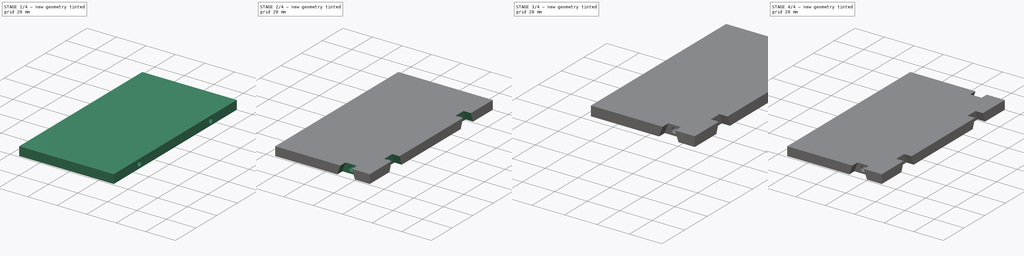
[diagram: build sequence overview — one tinted view per stage of 4, left to right]
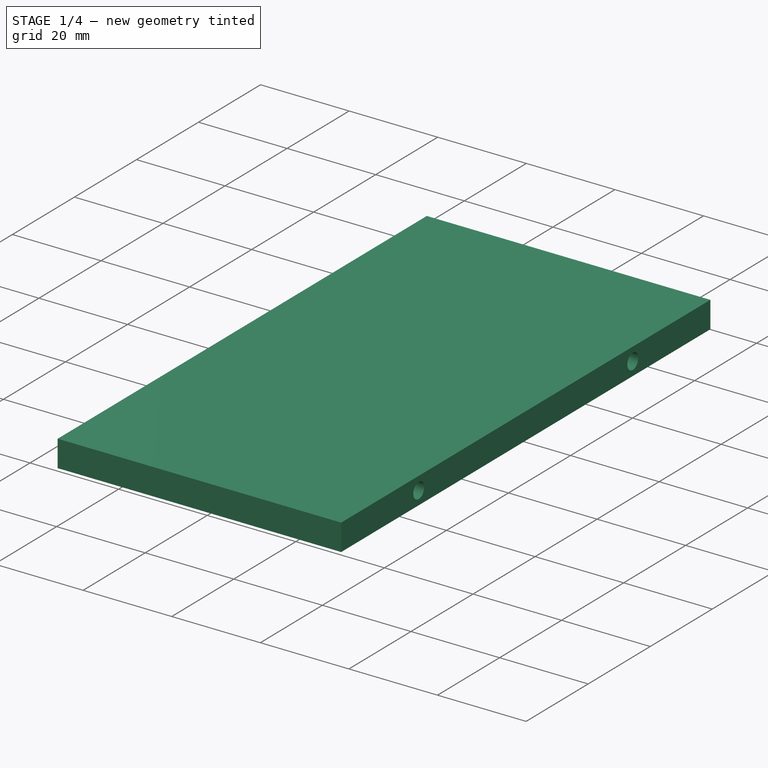
[diagram: stage 1 of 4 — iso view after this stage's code; geometry added in this stage tinted green]
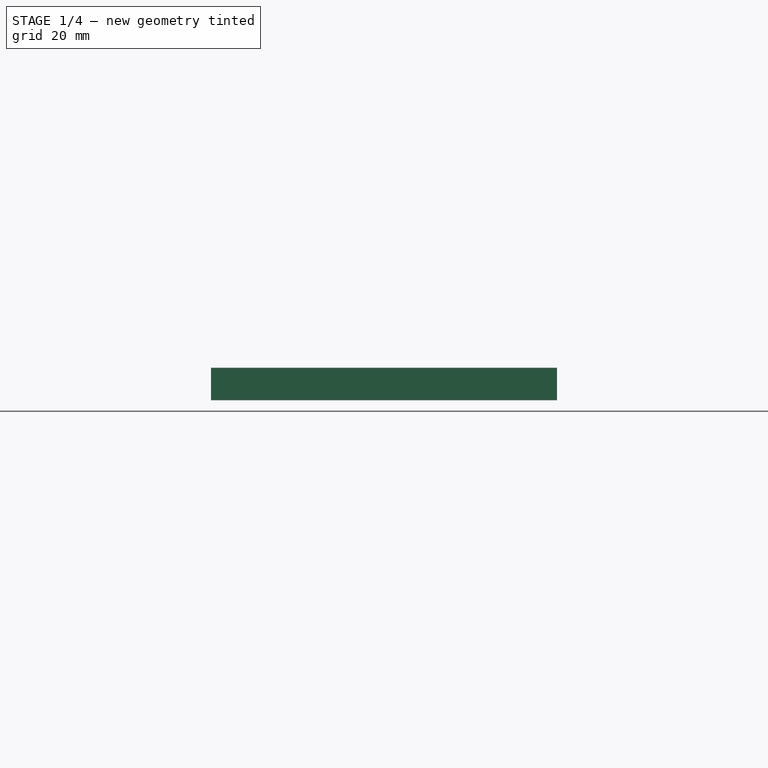
[diagram: stage 1 of 4 — front view after this stage's code; geometry added in this stage tinted green]
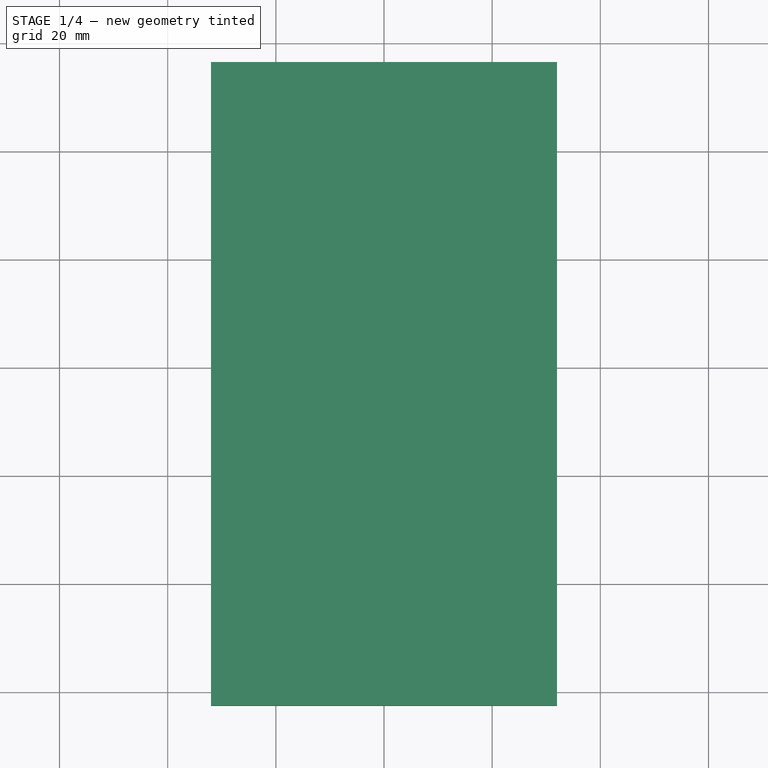
[diagram: stage 1 of 4 — top view after this stage's code; geometry added in this stage tinted green]
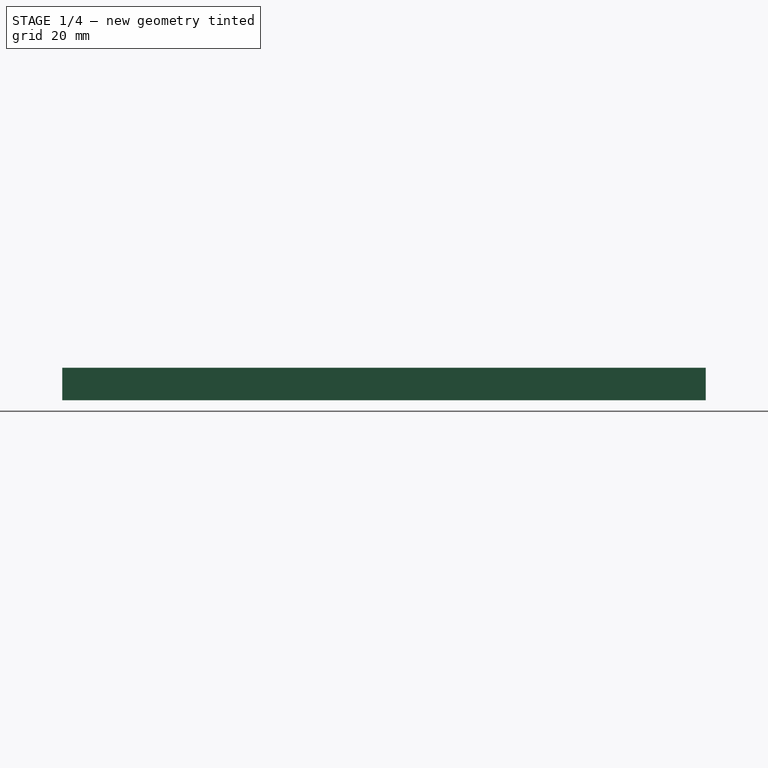
[diagram: stage 1 of 4 — right view after this stage's code; geometry added in this stage tinted green]
FCSTD DOCUMENT  (FreeCAD 0.22R38334 (Git))
Label: CH001
License: All rights reserved
LicenseURL: http://en.wikipedia.org/wiki/All_rights_reserved
objects: Sketcher::SketchObject×9, PartDesign::Pocket×6, PartDesign::Body×4, PartDesign::SubShapeBinder×2, PartDesign::Pad×2, PartDesign::Hole×1, Part::Mirroring×1, PartDesign::FeatureBase×1, App::Part×1
note: 54 computed .brp shape members not serialized (recipe doc carries the construction recipe); baked Part::Feature solids carry a one-line shape summary decoded from their .brp

FEATURE [PartDesign::SubShapeBinder] Binder020
  BindCopyOnChange = 0
  BindMode = 0
  ClaimChildren = false
  Context = -> Part004 [Body017.Binder020.]
  Fuse = false
  MakeFace = true
  OffsetFill = false
  OffsetIntersection = false
  OffsetJoinType = 0
  OffsetOpenResult = false
  PartialLoad = false
  Relative = true
  Support = -> [Body016[Sketch033.]]
  _Version = 2
FEATURE [PartDesign::Pad] Pad012
  Direction = (0,0,1)
  Length = 6
  Length2 = 10
  Profile = -> Binder020
  Suppressed = false
  Type = 0
FEATURE [Sketcher::SketchObject] Sketch
  AttachmentSupport = -> [Pad012]
  ExternalGeometry = -> [Pad012]
  FullyConstrained = true
  MakeInternals = false
  MapMode = 5
  Placement = pos=(32,0,0) rot=(0.57735,0.57735,0.57735;2.0944rad)
  sketch-geometry (4):
    g0: LineSegment StartX=57.5 StartY=3 StartZ=0 EndX=176.5 EndY=3 EndZ=0
    g1: Circle CenterX=82.5 CenterY=3 CenterZ=0 NormalX=0 NormalY=0 NormalZ=1 AngleXU=0 Radius=1.75
    g2: Circle CenterX=151.5 CenterY=3 CenterZ=0 NormalX=0 NormalY=0 NormalZ=1 AngleXU=0 Radius=1.75
    g3: GeomPoint X=117 Y=3 Z=0
  constraints (8):
    c: Symmetric(g-5,g-5,g0)
    c: Symmetric(g-6,g-6,g0)
    c: PointOnObject(g1,g0)
    c: Diameter(g1) = 3.5
    c: Equal(g1,g2)
    c: Symmetric(g0,g0,g3)
    c: Symmetric(g1,g2,g3)
    c: DistanceX(g0,g1) = 25
FEATURE [PartDesign::Pocket] Pocket
  BaseFeature = -> Pad012
  Direction = (-1,0,0)
  Length = 9
  Length2 = 5
  Profile = -> Sketch
  ReferenceAxis = -> Sketch [N_Axis]
  Suppressed = false
  Type = 0
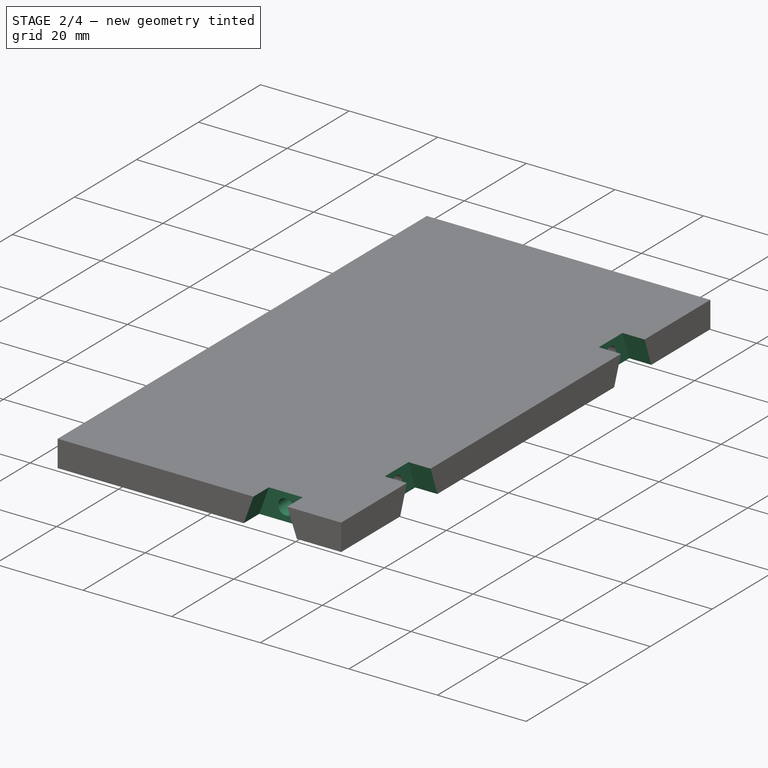
[diagram: stage 2 of 4 — iso view after this stage's code; geometry added in this stage tinted green]
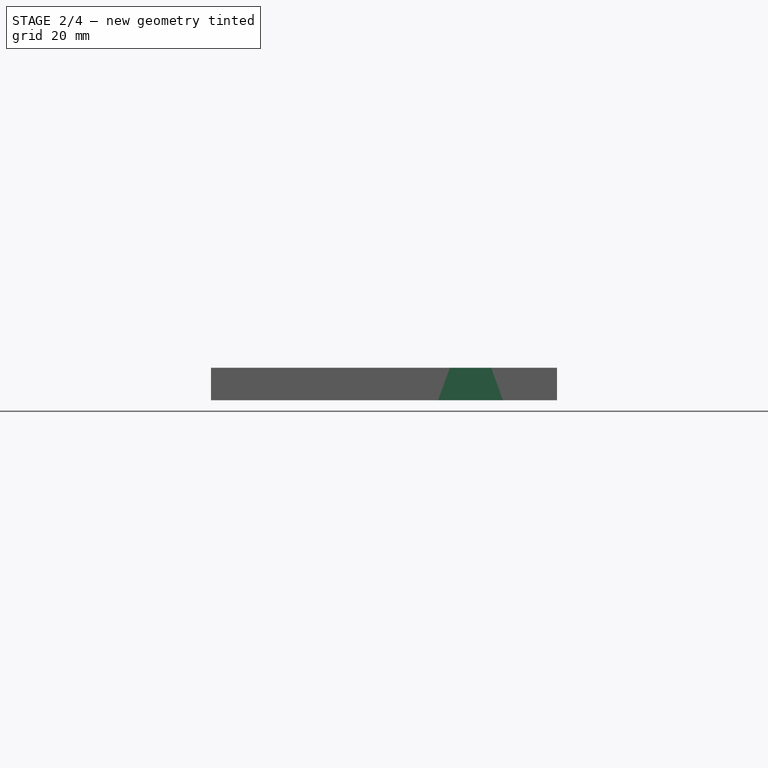
[diagram: stage 2 of 4 — front view after this stage's code; geometry added in this stage tinted green]
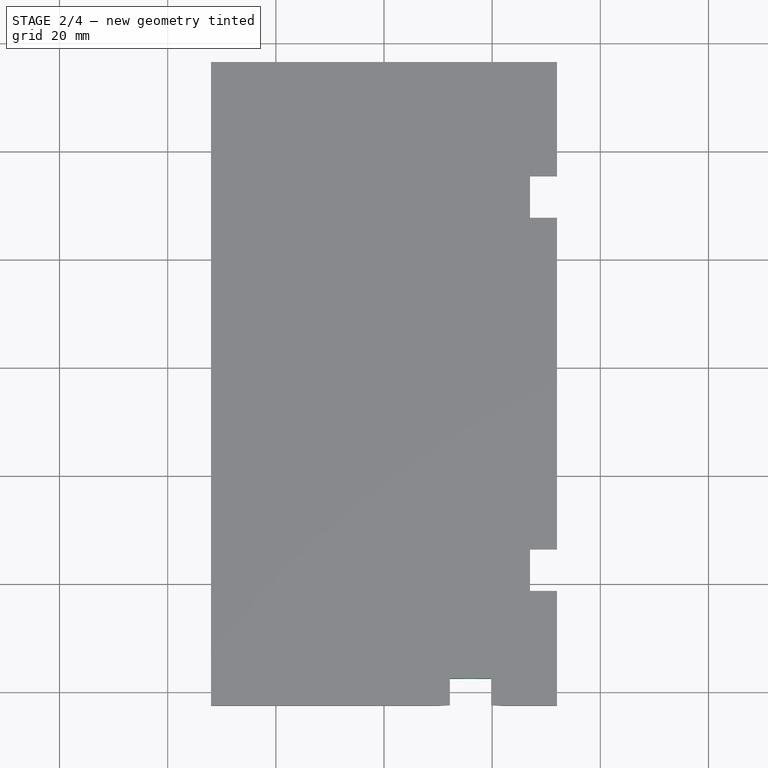
[diagram: stage 2 of 4 — top view after this stage's code; geometry added in this stage tinted green]
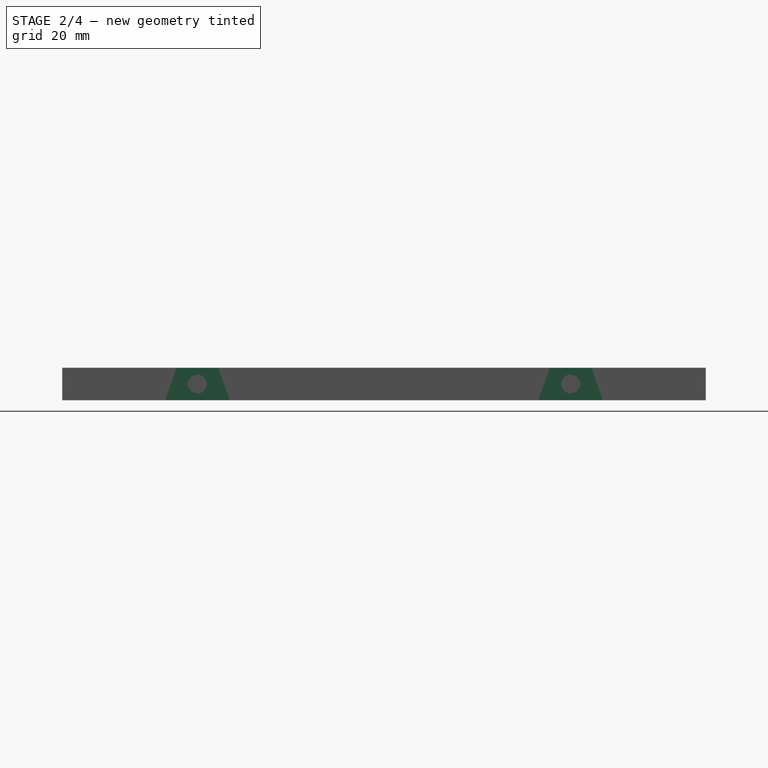
[diagram: stage 2 of 4 — right view after this stage's code; geometry added in this stage tinted green]
FEATURE [Sketcher::SketchObject] Sketch033
  AttachmentSupport = -> [XY_Plane021]
  FullyConstrained = true
  MakeInternals = false
  MapMode = 5
  expr: Constraints[10] = 215 - 48 * 2
  sketch-geometry (5):
    g0: LineSegment StartX=-32 StartY=-59.5 StartZ=0 EndX=32 EndY=-59.5 EndZ=0
    g1: LineSegment StartX=32 StartY=-59.5 StartZ=0 EndX=32 EndY=59.5 EndZ=0
    g2: LineSegment StartX=32 StartY=59.5 StartZ=0 EndX=-32 EndY=59.5 EndZ=0
    g3: LineSegment StartX=-32 StartY=59.5 StartZ=0 EndX=-32 EndY=-59.5 EndZ=0
    g4: GeomPoint X=0 Y=0 Z=0
  constraints (12):
    c: Coincident(g0,g1)
    c: Coincident(g1,g2)
    c: Coincident(g2,g3)
    c: Coincident(g3,g0)
    c: Horizontal(g0)
    c: Horizontal(g2)
    c: Vertical(g1)
    c: Vertical(g3)
    c: Symmetric(g2,g0,g4)
    c: Coincident(g4,g-1)
    c: DistanceY(g1,g1) = 119
    c: DistanceX(g2,g2) = 64
FEATURE [PartDesign::Body] Body016  label="Master004"
  AllowCompound = false
  Group = -> [Sketch033]
  Origin = -> Origin021
FEATURE [Sketcher::SketchObject] Sketch044
  AttachmentSupport = -> [Pocket]
  ExternalGeometry = -> [Pocket]
  FullyConstrained = true
  MakeInternals = false
  MapMode = 5
  Placement = pos=(32,0,0) rot=(0.57735,0.57735,0.57735;2.0944rad)
  sketch-geometry (10):
    g0: LineSegment StartX=76.5 StartY=0 StartZ=0 EndX=78.6838 EndY=6 EndZ=0
    g1: LineSegment StartX=78.6838 StartY=6 StartZ=0 EndX=86.3162 EndY=6 EndZ=0
    g2: LineSegment StartX=86.3162 StartY=6 StartZ=0 EndX=88.5 EndY=0 EndZ=0
    g3: LineSegment StartX=88.5 StartY=0 StartZ=0 EndX=76.5 EndY=0 EndZ=0
    g4: LineSegment StartX=147.684 StartY=6 StartZ=0 EndX=155.316 EndY=6 EndZ=0
    g5: LineSegment StartX=155.316 StartY=6 StartZ=0 EndX=157.5 EndY=0 EndZ=0
    g6: LineSegment StartX=157.5 StartY=0 StartZ=0 EndX=145.5 EndY=0 EndZ=0
    g7: LineSegment StartX=145.5 StartY=0 StartZ=0 EndX=147.684 EndY=6 EndZ=0
    g8: LineSegment StartX=82.5 StartY=6 StartZ=0 EndX=82.5 EndY=0 EndZ=0
    g9: LineSegment StartX=151.5 StartY=6 StartZ=0 EndX=151.5 EndY=2.336e-13 EndZ=0
  constraints (28):
    c: PointOnObject(g0,g-6)
    c: PointOnObject(g0,g-5)
    c: Coincident(g0,g1)
    c: PointOnObject(g1,g-5)
    c: Coincident(g1,g2)
    c: PointOnObject(g2,g-6)
    c: Coincident(g2,g3)
    c: Coincident(g3,g0)
    c: PointOnObject(g4,g-5)
    c: PointOnObject(g4,g-5)
    c: Coincident(g4,g5)
    c: PointOnObject(g5,g-6)
    c: Coincident(g5,g6)
    c: PointOnObject(g6,g-6)
    c: Coincident(g6,g7)
    c: Coincident(g7,g4)
    c: Symmetric(g1,g1,g8)
    c: Symmetric(g3,g3,g8)
    c: Symmetric(g4,g4,g9)
    c: PointOnObject(g-3,g8)
    c: Angle(g0,g1) = 1.91986
    c: Vertical(g8)
    c: DistanceX(g6,g6) = 12
    c: Angle(g7,g4) = 1.91986
    c: Symmetric(g6,g6,g9)
    c: Vertical(g9)
    c: PointOnObject(g-4,g9)
    c: DistanceX(g3,g3) = 12
FEATURE [PartDesign::Pocket] Pocket001
  BaseFeature = -> Pocket
  Direction = (-1,0,0)
  Length = 5
  Length2 = 5
  Profile = -> Sketch044
  ReferenceAxis = -> Sketch044 [N_Axis]
  Suppressed = false
  Type = 0
FEATURE [Sketcher::SketchObject] Sketch045
  AttachmentSupport = -> [Pocket001]
  ExternalGeometry = -> [Pocket001]
  FullyConstrained = true
  MakeInternals = false
  MapMode = 5
  Placement = pos=(0,57.5,0) rot=(1,0,0;1.5708rad)
  sketch-geometry (5):
    g0: LineSegment StartX=10 StartY=0 StartZ=0 EndX=12.1838 EndY=6 EndZ=0
    g1: LineSegment StartX=12.1838 StartY=6 StartZ=0 EndX=19.8162 EndY=6 EndZ=0
    g2: LineSegment StartX=19.8162 StartY=6 StartZ=0 EndX=22 EndY=0 EndZ=0
    g3: LineSegment StartX=22 StartY=0 StartZ=0 EndX=10 EndY=0 EndZ=0
    g4: LineSegment StartX=16 StartY=6 StartZ=0 EndX=16 EndY=0 EndZ=0
  constraints (14):
    c: PointOnObject(g0,g-3)
    c: PointOnObject(g0,g-4)
    c: Coincident(g0,g1)
    c: PointOnObject(g1,g-4)
    c: Coincident(g1,g2)
    c: PointOnObject(g2,g-3)
    c: Coincident(g2,g3)
    c: Coincident(g3,g0)
    c: Vertical(g4)
    c: Symmetric(g1,g1,g4)
    c: Symmetric(g3,g3,g4)
    c: Angle(g0,g1) = 1.91986
    c: DistanceX(g3,g3) = 12
    c: DistanceX(g2,g-5) = 10
FEATURE [PartDesign::Pocket] Pocket002
  BaseFeature = -> Pocket001
  Direction = (0,1,-2e-16)
  Length = 5
  Length2 = 5
  Profile = -> Sketch045
  ReferenceAxis = -> Sketch045 [N_Axis]
  Suppressed = false
  Type = 0
FEATURE [Sketcher::SketchObject] Sketch046
  AttachmentSupport = -> [Pocket002]
  ExternalGeometry = -> [Pocket002]
  FullyConstrained = true
  MakeInternals = false
  MapMode = 5
  Placement = pos=(0,62.5,0) rot=(1,0,0;1.5708rad)
  sketch-geometry (2):
    g0: LineSegment StartX=16 StartY=6 StartZ=0 EndX=16 EndY=0 EndZ=0
    g1: Circle CenterX=16 CenterY=3 CenterZ=0 NormalX=0 NormalY=0 NormalZ=1 AngleXU=0 Radius=1.75
  constraints (4):
    c: Symmetric(g-3,g-3,g0)
    c: Symmetric(g-4,g-4,g0)
    c: Symmetric(g0,g0,g1)
    c: Diameter(g1) = 3.5
FEATURE [PartDesign::Pocket] Pocket003
  BaseFeature = -> Pocket002
  Direction = (0,1,-2e-16)
  Length = 4
  Length2 = 5
  Profile = -> Sketch046
  ReferenceAxis = -> Sketch046 [N_Axis]
  Suppressed = false
  Type = 0
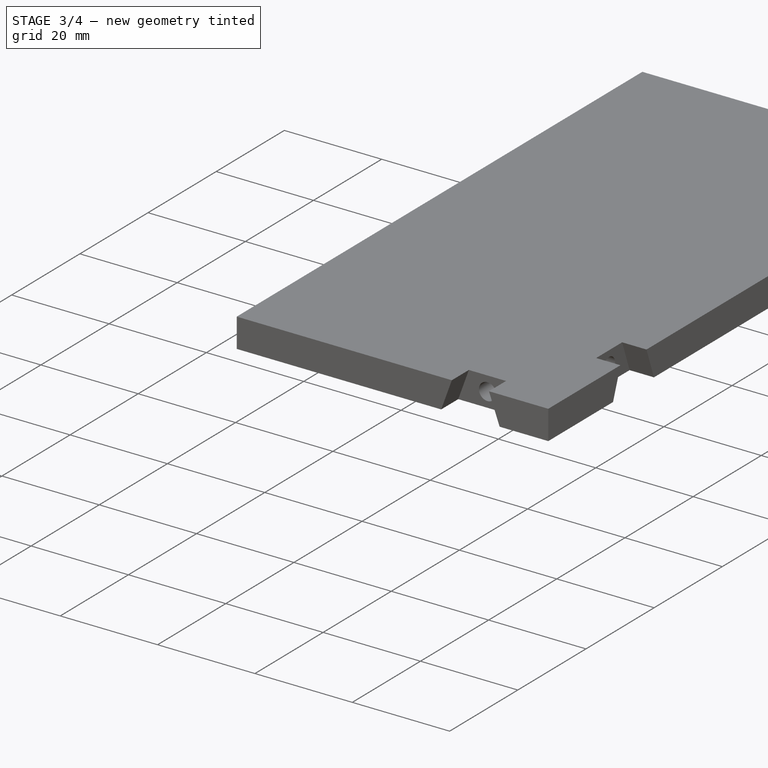
[diagram: stage 3 of 4 — iso view after this stage's code; geometry added in this stage tinted green]
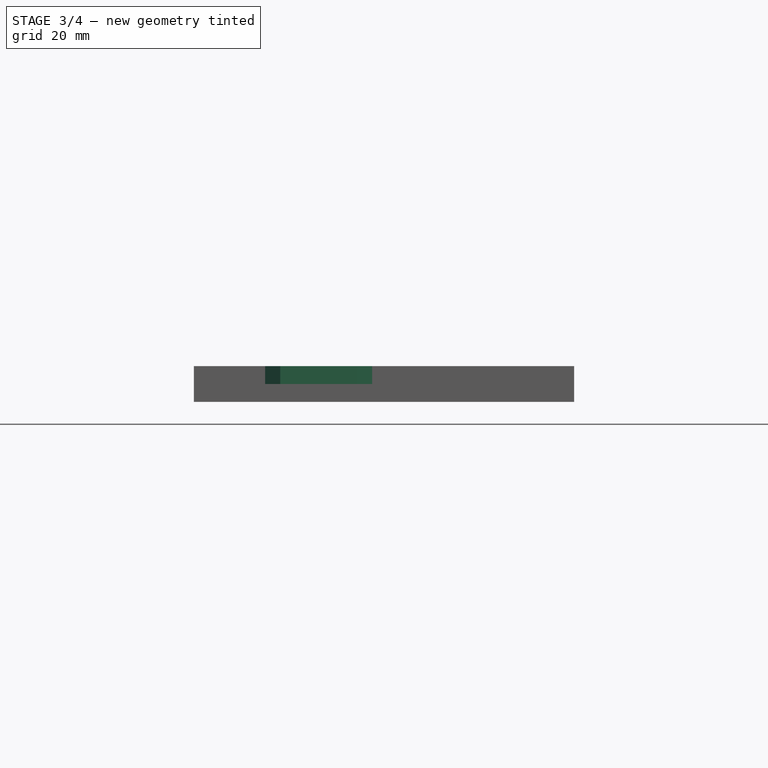
[diagram: stage 3 of 4 — front view after this stage's code; geometry added in this stage tinted green]
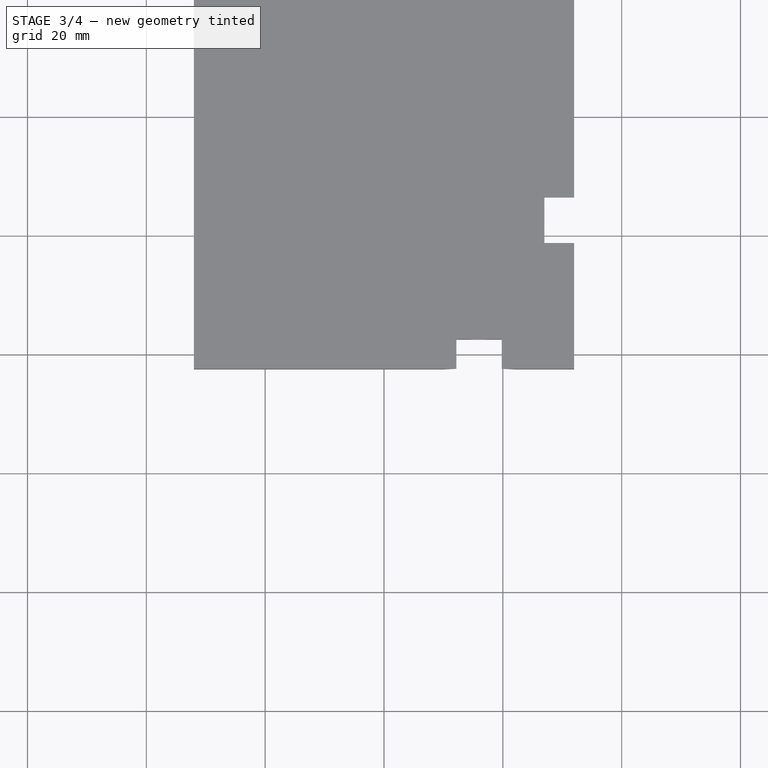
[diagram: stage 3 of 4 — top view after this stage's code; geometry added in this stage tinted green]
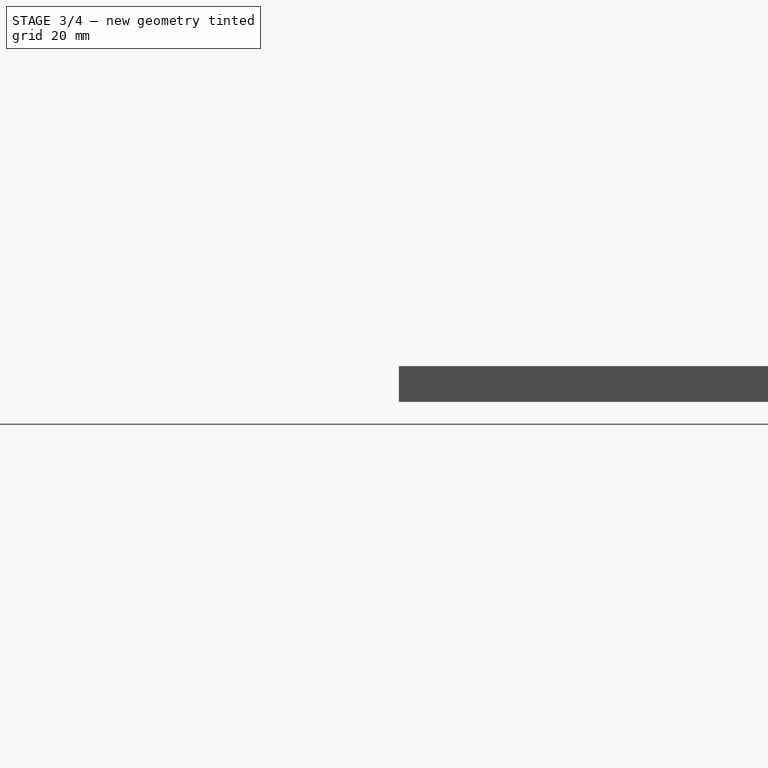
[diagram: stage 3 of 4 — right view after this stage's code; geometry added in this stage tinted green]
FEATURE [Sketcher::SketchObject] Sketch047
  AttachmentSupport = -> [Pocket003]
  ExternalGeometry = -> [Pocket003]
  FullyConstrained = true
  MakeInternals = false
  MapMode = 5
  Placement = pos=(0,176.5,0) rot=(0,0.707107,0.707107;3.14159rad)
  sketch-geometry (5):
    g0: LineSegment StartX=-22 StartY=-1.9e-15 StartZ=0 EndX=-19.8162 EndY=6 EndZ=0
    g1: LineSegment StartX=-19.8162 StartY=6 StartZ=0 EndX=-12.1838 EndY=6 EndZ=0
    g2: LineSegment StartX=-12.1838 StartY=6 StartZ=0 EndX=-10 EndY=-9e-16 EndZ=0
    g3: LineSegment StartX=-10 StartY=-9e-16 StartZ=0 EndX=-22 EndY=-1.9e-15 EndZ=0
    g4: LineSegment StartX=-16 StartY=6 StartZ=0 EndX=-16 EndY=-1.8e-15 EndZ=0
  constraints (14):
    c: PointOnObject(g0,g-4)
    c: PointOnObject(g0,g-3)
    c: Coincident(g0,g1)
    c: PointOnObject(g1,g-3)
    c: Coincident(g1,g2)
    c: PointOnObject(g2,g-4)
    c: Coincident(g2,g3)
    c: Coincident(g3,g0)
    c: Vertical(g4)
    c: Symmetric(g1,g1,g4)
    c: Symmetric(g3,g3,g4)
    c: DistanceX(g3,g3) = 12
    c: Angle(g0,g1) = 1.91986
    c: DistanceX(g-4,g0) = 10
FEATURE [PartDesign::Pocket] Pocket004
  BaseFeature = -> Pocket003
  Direction = (0,-1,2e-16)
  Length = 5
  Length2 = 5
  Profile = -> Sketch047
  ReferenceAxis = -> Sketch047 [N_Axis]
  Suppressed = false
  Type = 0
FEATURE [PartDesign::SubShapeBinder] Binder
  BindCopyOnChange = 0
  BindMode = 0
  ClaimChildren = false
  Context = -> Part004 [Body.Binder.]
  Fuse = false
  MakeFace = true
  OffsetFill = false
  OffsetIntersection = false
  OffsetJoinType = 0
  OffsetOpenResult = false
  PartialLoad = false
  Placement = pos=(0,0,3) rot=(0,0,1;0rad)
  Relative = true
  Support = -> [Body016[Sketch033.]]
  _Version = 2
FEATURE [PartDesign::Body] Body  label="CH002"
  AllowCompound = false
  Origin = -> Origin
FEATURE [Sketcher::SketchObject] Sketch050
  AttachmentSupport = -> [Binder]
  ExternalGeometry = -> [Binder]
  FullyConstrained = true
  MakeInternals = false
  MapMode = 5
  Placement = pos=(0,0,3) rot=(0,0,1;0rad)
  sketch-geometry (5):
    g0: LineSegment StartX=-20 StartY=-59.5 StartZ=0 EndX=-17.4522 EndY=-66.5 EndZ=0
    g1: LineSegment StartX=-17.4522 StartY=-66.5 StartZ=0 EndX=-4.54779 EndY=-66.5 EndZ=0
    g2: LineSegment StartX=-4.54779 StartY=-66.5 StartZ=0 EndX=-2 EndY=-59.5 EndZ=0
    g3: LineSegment StartX=-2 StartY=-59.5 StartZ=0 EndX=-20 EndY=-59.5 EndZ=0
    g4: LineSegment StartX=-11 StartY=-59.5 StartZ=0 EndX=-11 EndY=-66.5 EndZ=0
  constraints (14):
    c: PointOnObject(g0,g-3)
    c: Coincident(g0,g1)
    c: Horizontal(g1)
    c: Coincident(g1,g2)
    c: PointOnObject(g2,g-3)
    c: Coincident(g2,g3)
    c: Coincident(g3,g0)
    c: Symmetric(g3,g3,g4)
    c: Vertical(g4)
    c: Symmetric(g1,g1,g4)
    c: DistanceX(g3,g3) = 18
    c: Angle(g1,g0) = 1.91986
    c: DistanceY(g1,g2) = 7
    c: DistanceX(g-3,g4) = 21
FEATURE [PartDesign::Pad] Pad
  Direction = (0,0,1)
  Length = 3
  Length2 = 10
  Placement = pos=(0,0,3) rot=(0,0,1;0rad)
  Profile = -> Sketch050
  ReferenceAxis = -> Sketch050 [N_Axis]
  Suppressed = false
  Type = 0
FEATURE [PartDesign::FeatureBase] BaseFeature
  BaseFeature = -> Binder
  Suppressed = false
FEATURE [PartDesign::Body] HoleBody
  AllowCompound = false
  BaseFeature = -> Binder
  Group = -> [BaseFeature]
  Origin = -> Origin023
  Tip = -> BaseFeature
FEATURE [Sketcher::SketchObject] Sketch053
  AttachmentSupport = -> [Pocket004]
  ExternalGeometry = -> [Pocket004]
  FullyConstrained = true
  MakeInternals = false
  MapMode = 5
  Placement = pos=(0,171.5,0) rot=(0,0.707107,0.707107;3.14159rad)
  sketch-geometry (2):
    g0: LineSegment StartX=-16 StartY=6 StartZ=0 EndX=-16 EndY=0 EndZ=0
    g1: Circle CenterX=-16 CenterY=3 CenterZ=0 NormalX=0 NormalY=0 NormalZ=1 AngleXU=0 Radius=1.75
  constraints (4):
    c: Symmetric(g-3,g-3,g0)
    c: Symmetric(g-4,g-4,g0)
    c: Symmetric(g0,g0,g1)
    c: Diameter(g1) = 3.5
FEATURE [PartDesign::Pocket] Pocket005
  BaseFeature = -> Pocket004
  Direction = (0,-1,2e-16)
  Length = 4
  Length2 = 5
  Profile = -> Sketch053
  ReferenceAxis = -> Sketch053 [N_Axis]
  Suppressed = false
  Type = 0
FEATURE [PartDesign::Body] Body017  label="CH001"
  AllowCompound = false
  Group = -> [Binder020,Pad012,Sketch,Pocket,Sketch044,Pocket001,Sketch045,Pocket002,Sketch046,Pocket003,Sketch047,Pocket004,Sketch053,Pocket005]
  Origin = -> Origin022
  Placement = pos=(0,-117,0) rot=(0,0,1;0rad)
  Tip = -> Pocket005
FEATURE [App::Part] Part004  label="CH001_"
  Group = -> [Body016,Body017,Body,Sketch050,Pad,Binder,Hole,Sketch051,Part__Mirroring,HoleBody]
  Origin = -> Origin020
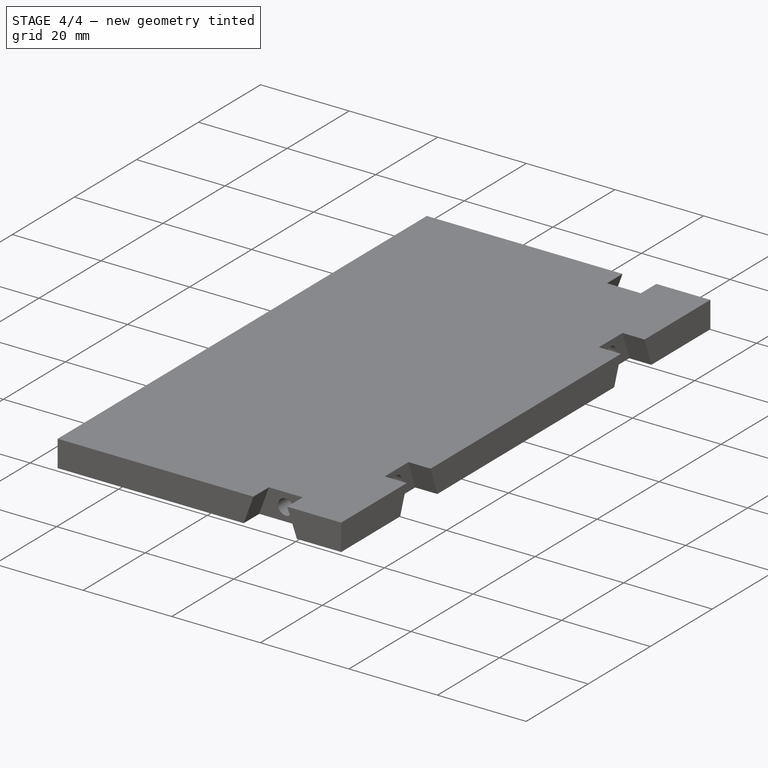
[diagram: stage 4 of 4 — iso view after this stage's code; geometry added in this stage tinted green]
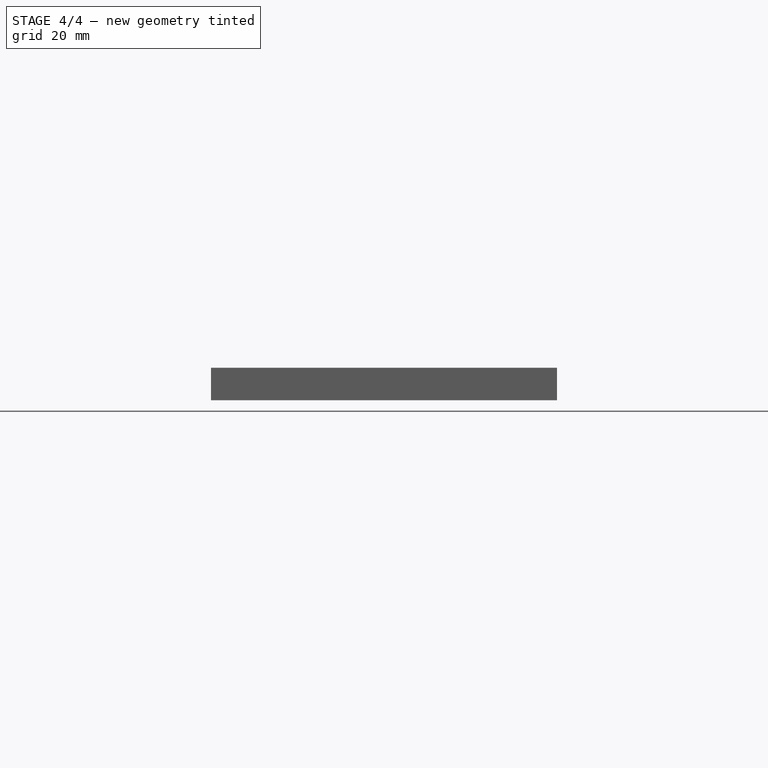
[diagram: stage 4 of 4 — front view after this stage's code; geometry added in this stage tinted green]
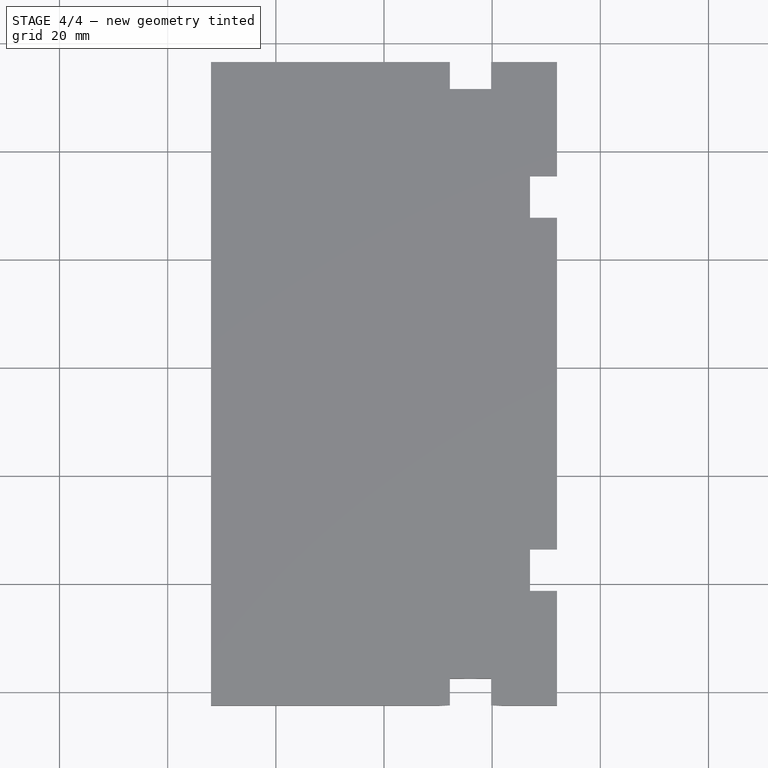
[diagram: stage 4 of 4 — top view after this stage's code; geometry added in this stage tinted green]
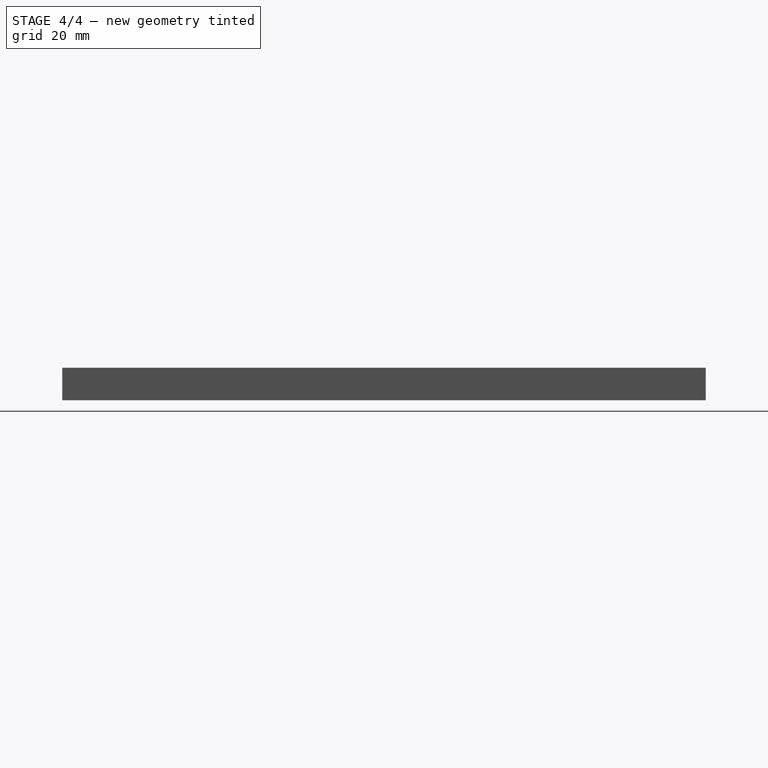
[diagram: stage 4 of 4 — right view after this stage's code; geometry added in this stage tinted green]
FEATURE [Sketcher::SketchObject] Sketch051
  AttachmentSupport = -> [Pad]
  ExternalGeometry = -> [Pad]
  FullyConstrained = true
  MakeInternals = false
  MapMode = 5
  Placement = pos=(0,0,6) rot=(0,0,1;0rad)
  sketch-geometry (2):
    g0: LineSegment StartX=-11 StartY=-59.5 StartZ=0 EndX=-11 EndY=-66.5 EndZ=0
    g1: Circle CenterX=-11 CenterY=-63 CenterZ=0 NormalX=0 NormalY=0 NormalZ=1 AngleXU=0 Radius=1.75
  constraints (5):
    c: PointOnObject(g0,g-4)
    c: Vertical(g0)
    c: Symmetric(g-3,g-3,g0)
    c: Symmetric(g0,g0,g1)
    c: Diameter(g1) = 3.5
FEATURE [PartDesign::Hole] Hole
  CustomThreadClearance = 0
  Depth = 25
  DepthType = 0
  Diameter = 3.4
  DrillForDepth = false
  DrillPoint = 1
  DrillPointAngle = 118
  HoleCutCountersinkAngle = 90
  HoleCutCustomValues = false
  HoleCutDepth = 0
  HoleCutDiameter = 6.1
  HoleCutType = 2
  ModelThread = false
  Placement = pos=(0,0,3) rot=(0,0,1;0rad)
  Profile = -> Sketch051
  Suppressed = false
  Tapered = false
  TaperedAngle = 90
  ThreadClass = 0
  ThreadDepth = 25
  ThreadDepthType = 0
  ThreadDirection = 0
  ThreadFit = 0
  ThreadSize = 9
  ThreadType = 1
  Threaded = false
  UseCustomThreadClearance = false
FEATURE [Part::Mirroring] Part__Mirroring  label="Hole (Mirror #1)"
  Base = (0,0,0)
  Normal = (0,1,0)
  Source = -> Hole
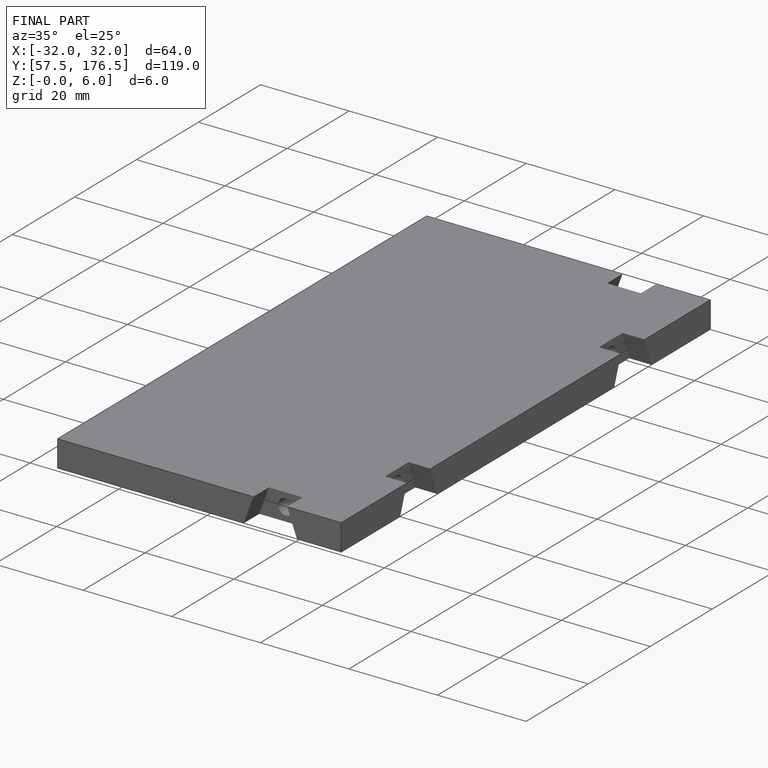
[diagram: finished part — iso view with bounding-box wireframe]
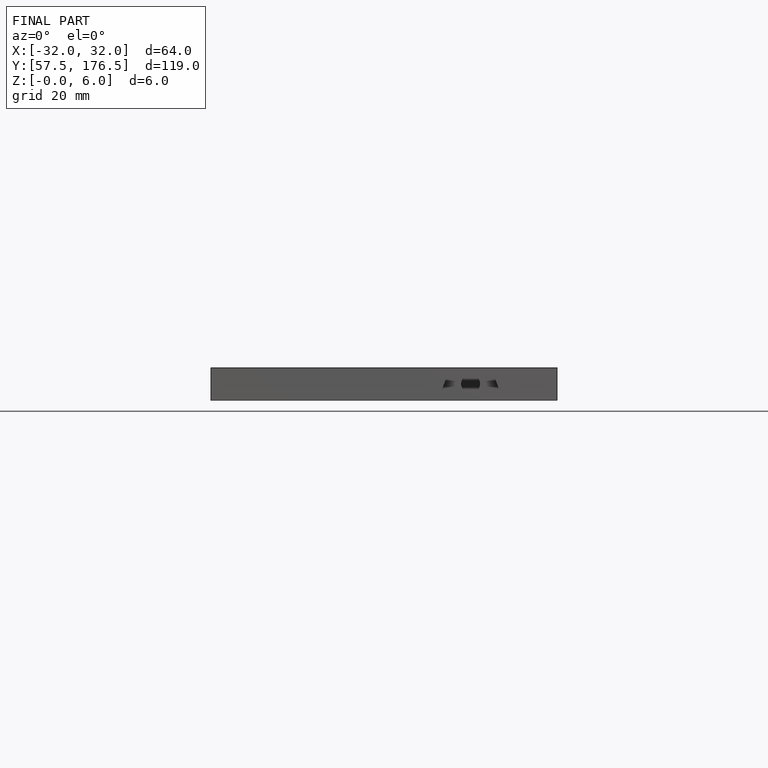
[diagram: finished part — front view with bounding-box wireframe]
